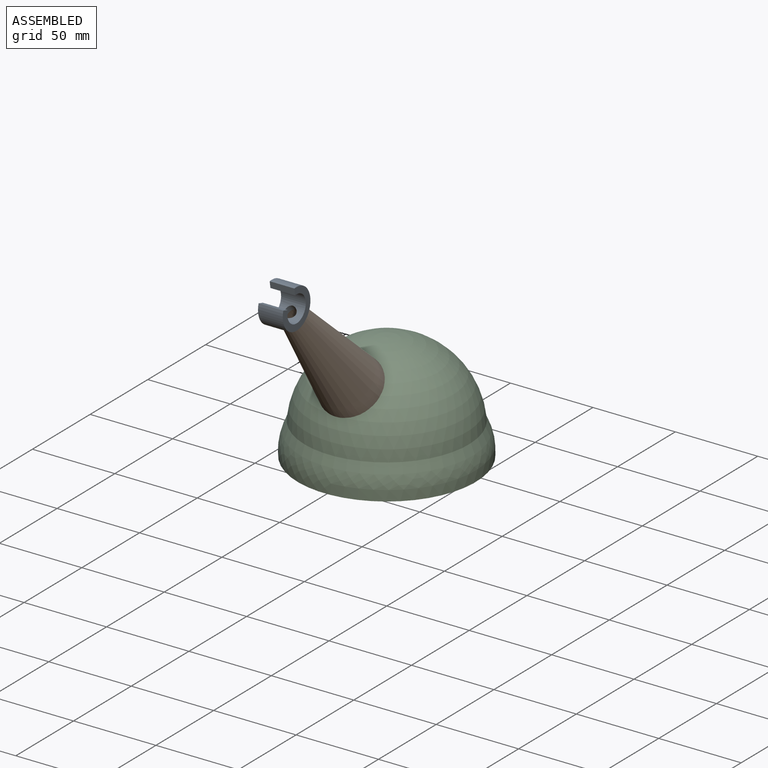
[diagram: assembled view]
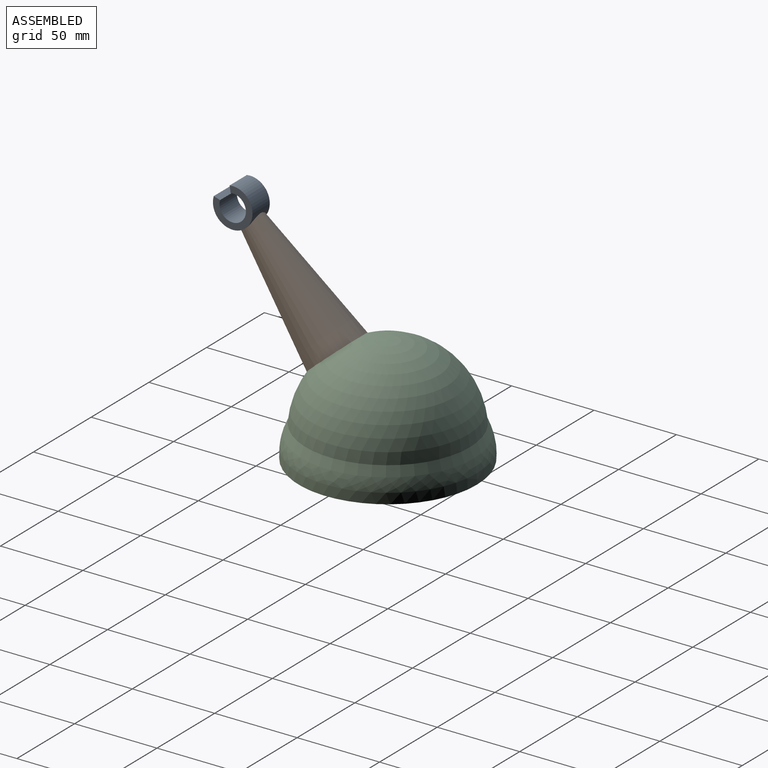
[diagram: assembled view, second angle]
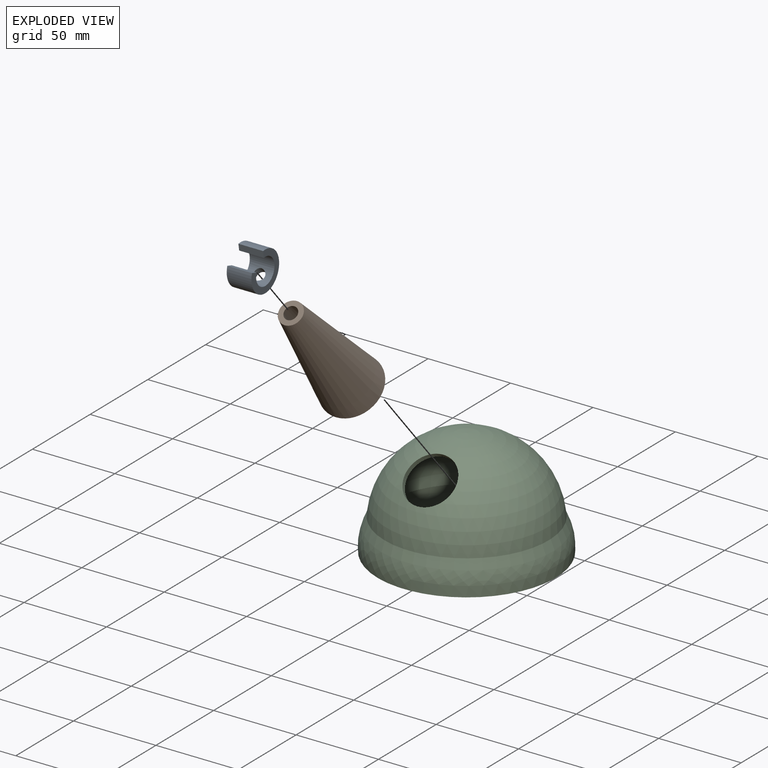
[diagram: exploded view]
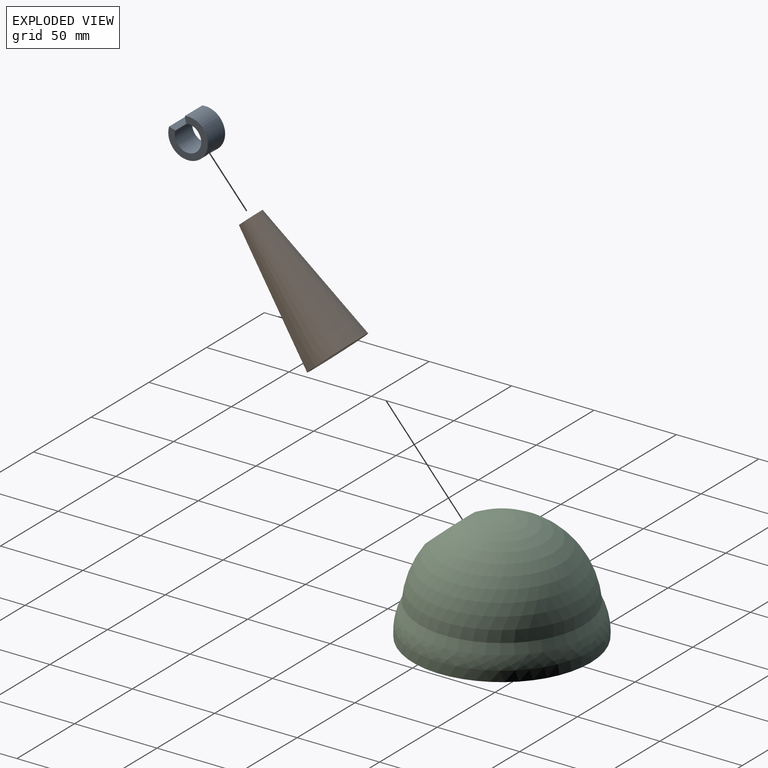
[diagram: exploded view, second angle]
ASSEMBLY  parts=3 mates=2
PART A: 7 faces, bbox 24x15x22.2 mm
  f0: plane 15x3.4mm, normal (0.85,0,0.53), area 60mm2, adj f1,f3,f4,f5
  f1: cylinder r=12mm len=24mm, axis (0,1,0), area 890mm2, adj f0,f2,f4,f5,f6
  f2: plane 15x3.4mm, normal (-0.85,0,0.53), area 60mm2, adj f1,f3,f4,f5
  f3: cylinder r=8mm len=16mm, axis (0,1,0), area 579mm2, adj f0,f2,f4,f5,f6
  f4: plane 24x22.16mm, normal (0,-1,0), area 206.3mm2, adj f0,f1,f2,f3
  f5: plane 24x22.16mm, normal (0,1,0), area 206.3mm2, adj f0,f1,f2,f3
  f6: cylinder r=3.5mm len=7mm, axis (0,0,-1), area 91mm2, adj f1,f3
PART B: 4 faces, bbox 36.1x36.1x80 mm
  f0: plane 36.06x36.06mm, normal (0,0,-1), area 314.2mm2, adj f1,f3
  f1: cone r=6.97mm half-angle=7.8deg, axis (0,0,-1), area 6356.6mm2, adj f0,f2
  f2: plane 14.06x14.06mm, normal (0,0,1), area 104.9mm2, adj f1,f3
  f3: cone r=4mm half-angle=7.8deg, axis (0,0,-1), area 4820.2mm2, adj f0,f2
PART C: 7 faces, bbox 108.1x108.1x65 mm
  f0: sphere r=47mm, area 13153.2mm2, adj f2,f6
  f1: sphere r=50mm, area 13582.9mm2, adj f5,f6
  f2: plane 100x100mm, normal (0,0,-1), area 914.2mm2, adj f0,f3
  f3: revolved ~104.02x104.02mm, area 4922.9mm2, adj f2,f4
  f4: plane 108x108mm, normal (0,0,-1), area 666mm2, adj f3,f5
  f5: revolved ~108.15x108.15mm, area 6683mm2, adj f1,f4
  f6: cylinder r=15mm len=30mm, axis (0.66,0,0.75), area 297.3mm2, adj f0,f1
PLACE A rot(axis=(0.33,0.33,-0.88),97.1deg) t=(0,-88.84,116.43)mm
PLACE B rot(axis=(0.33,0.33,-0.88),97.1deg) t=(0,-30.39,49.69)mm
PLACE C rot(axis=(0,0,-1),90deg) t=(0,-50,0)mm
MATE fastened B.f1 <-> C.f6  axis (0,0.66,-0.75) through (0,-30.39,49.69)mm
MATE slider A.f6 <-> B.f1  axis (0,0.66,-0.75) through (0,-84.12,111.05)mm
